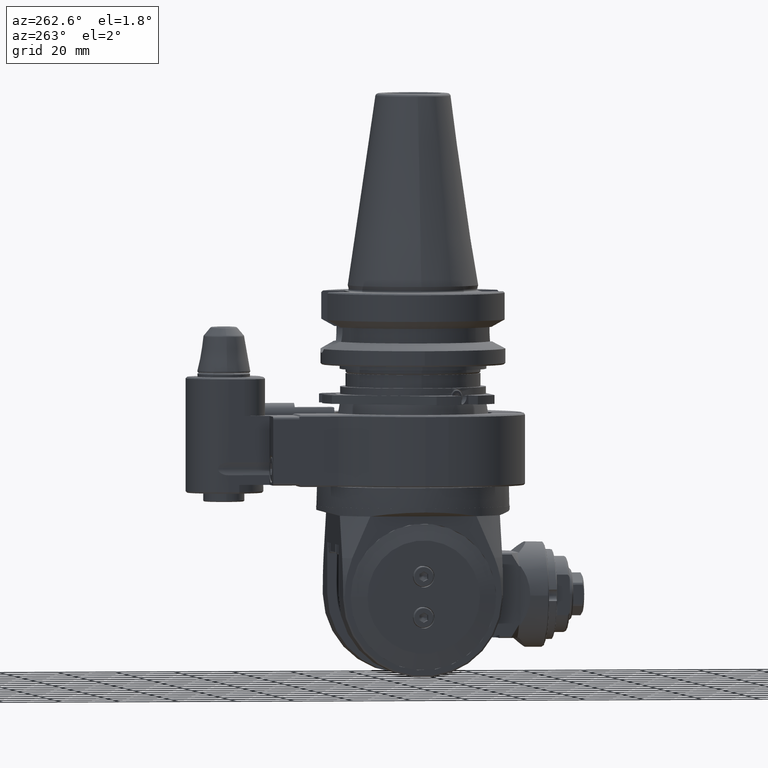
[diagram: clean part render]
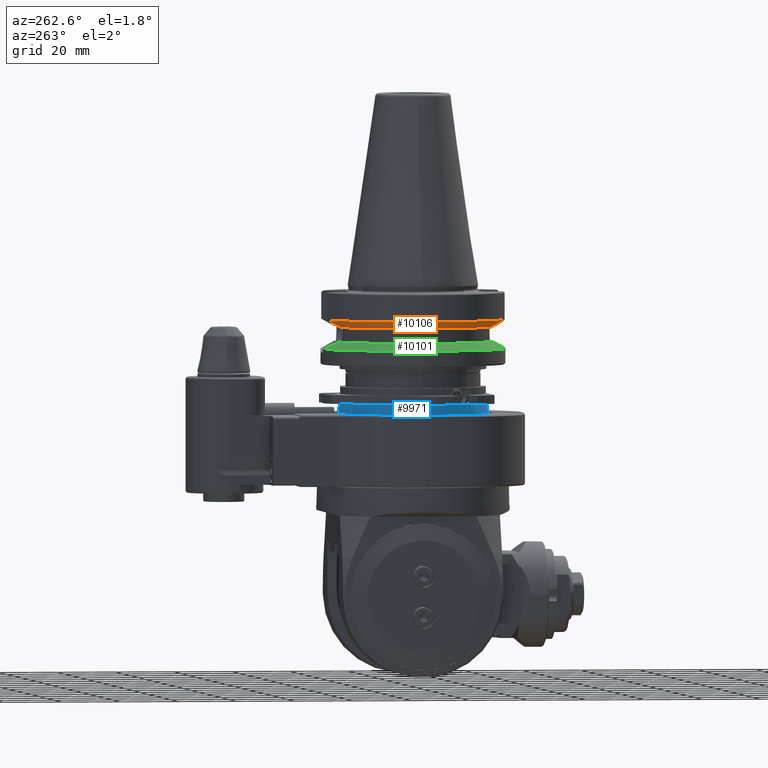
[diagram: same view with three faces highlighted in distinct colors, each labeled with its STEP entity id]
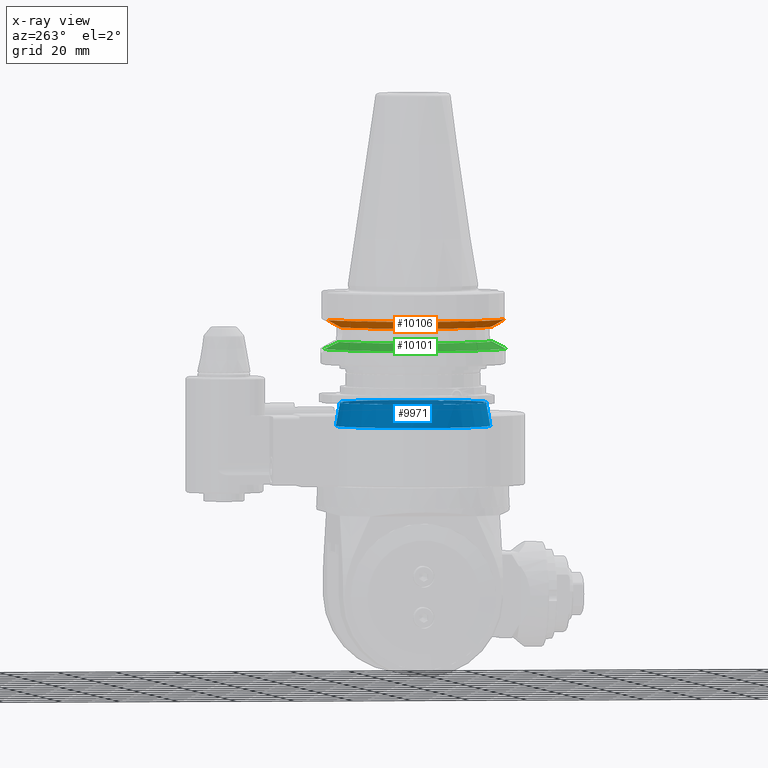
[diagram: x-ray of the same camera — body ghosted, the three highlighted faces saturated]
A machine part, auxiliary view with three faces highlighted in distinct colors.
The next image is the same camera in x-ray (body ghosted, the three faces saturated) — at least one of them is partly hidden behind the body in this view.
Their STEP definitions:

[orange] entity #10106 — the highlighted conical surface has half-angle 60 deg.
#99=(
BOUNDED_CURVE()
B_SPLINE_CURVE(2,(#15861,#15862,#15863),.UNSPECIFIED.,.F.,.F.)
B_SPLINE_CURVE_WITH_KNOTS((3,3),(-2.52625185842891,-1.9016605311531),
 .UNSPECIFIED.)
CURVE()
GEOMETRIC_REPRESENTATION_ITEM()
RATIONAL_B_SPLINE_CURVE((1.02064611976595,1.03030670257301,1.03392826272012))
REPRESENTATION_ITEM('')
);
#100=(
BOUNDED_CURVE()
B_SPLINE_CURVE(2,(#15885,#15886,#15887),.UNSPECIFIED.,.F.,.F.)
B_SPLINE_CURVE_WITH_KNOTS((3,3),(1.90166053726005,2.5262518499692),
 .UNSPECIFIED.)
CURVE()
GEOMETRIC_REPRESENTATION_ITEM()
RATIONAL_B_SPLINE_CURVE((1.03392826264895,1.0303067025273,1.02064612002745))
REPRESENTATION_ITEM('')
);
#316=CONICAL_SURFACE('',#10873,29.33481350322,1.0471975511966);
#2416=FACE_OUTER_BOUND('',#3035,.T.);
#3035=EDGE_LOOP('',(#7370,#7371,#7372,#7373));
#3648=CIRCLE('',#10874,27.16962701892);
#3649=CIRCLE('',#10875,31.5);
#4295=VERTEX_POINT('',#15859);
#4296=VERTEX_POINT('',#15860);
#4300=VERTEX_POINT('',#15882);
#4301=VERTEX_POINT('',#15884);
#5438=EDGE_CURVE('',#4295,#4296,#99,.T.);
#5444=EDGE_CURVE('',#4300,#4295,#3648,.T.);
#5445=EDGE_CURVE('',#4301,#4300,#100,.T.);
#5446=EDGE_CURVE('',#4301,#4296,#3649,.T.);
#7370=ORIENTED_EDGE('',*,*,#5438,.F.);
#7371=ORIENTED_EDGE('',*,*,#5444,.F.);
#7372=ORIENTED_EDGE('',*,*,#5445,.F.);
#7373=ORIENTED_EDGE('',*,*,#5446,.T.);
#10106=ADVANCED_FACE('',(#2416),#316,.T.);
#10873=AXIS2_PLACEMENT_3D('',#15881,#12497,#12498);
#10874=AXIS2_PLACEMENT_3D('',#15883,#12499,#12500);
#10875=AXIS2_PLACEMENT_3D('',#15888,#12501,#12502);
#12497=DIRECTION('center_axis',(0.,0.,1.));
#12498=DIRECTION('ref_axis',(-1.,1.400901672444E-9,0.));
#12499=DIRECTION('center_axis',(0.,0.,-1.));
#12500=DIRECTION('ref_axis',(-0.296286733371313,-0.955099037601942,0.));
#12501=DIRECTION('center_axis',(0.,0.,-1.));
#12502=DIRECTION('ref_axis',(-1.,1.400901549979E-9,0.));
#15859=CARTESIAN_POINT('',(-8.0499999458592,25.949684617418,53.8999999065049));
#15860=CARTESIAN_POINT('',(-8.049999957337,30.45402273406,56.40014200632));
#15861=CARTESIAN_POINT('Ctrl Pts',(-8.04999996364742,25.9496845832241,53.8999999685148));
#15862=CARTESIAN_POINT('Ctrl Pts',(-8.04999996072523,28.0356222925402,55.0502416880072));
#15863=CARTESIAN_POINT('Ctrl Pts',(-8.04999995733728,30.4540227339352,56.40014200625));
#15881=CARTESIAN_POINT('Origin',(0.,0.,55.15007099956));
#15882=CARTESIAN_POINT('',(-8.050000036353,-25.94968461778,53.9));
#15883=CARTESIAN_POINT('Origin',(0.,0.,53.9));
#15884=CARTESIAN_POINT('',(-8.05000007270157,-30.454022656574,56.4001419937208));
#15885=CARTESIAN_POINT('Ctrl Pts',(-8.05000004266271,-30.4540226642613,
56.4001419799488));
#15886=CARTESIAN_POINT('Ctrl Pts',(-8.05000003927477,-28.0356222826582,
55.0502416952171));
#15887=CARTESIAN_POINT('Ctrl Pts',(-8.05000003635258,-25.9496846177145,
53.8999999999707));
#15888=CARTESIAN_POINT('Origin',(0.,0.,56.40014200632));

[blue] entity #9971 — the highlighted conical surface has half-angle 10 deg.
#291=CONICAL_SURFACE('',#10658,25.70530792283,0.174532925199433);
#383=B_SPLINE_CURVE_WITH_KNOTS('',3,(#14841,#14842,#14843,#14844,#14845,
#14846,#14847,#14848,#14849,#14850),.UNSPECIFIED.,.F.,.F.,(4,2,2,2,4),(0.311494920446572,
0.319461834048364,0.425205977115321,0.530950120182278,0.538917033784317),
 .UNSPECIFIED.);
#384=B_SPLINE_CURVE_WITH_KNOTS('',3,(#14917,#14918,#14919,#14920,#14921,
#14922),.UNSPECIFIED.,.F.,.F.,(4,2,4),(0.311494920446681,0.319461834048362,
0.425205977115319),.UNSPECIFIED.);
#385=B_SPLINE_CURVE_WITH_KNOTS('',3,(#14929,#14930,#14931,#14932,#14933,
#14934),.UNSPECIFIED.,.F.,.F.,(4,2,4),(0.425205977115319,0.530950120182276,
0.538917033784068),.UNSPECIFIED.);
#495=LINE('',#14961,#1331);
#1331=VECTOR('',#11861,25.70530792283);
#2281=FACE_OUTER_BOUND('',#2885,.T.);
#2885=EDGE_LOOP('',(#6688,#6689,#6690,#6691,#6692,#6693,#6694,#6695,#6696,
#6697,#6698));
#3559=CIRCLE('',#10633,25.);
#3560=CIRCLE('',#10634,25.);
#3568=CIRCLE('',#10657,25.);
#3569=CIRCLE('',#10659,26.41061584567);
#3570=CIRCLE('',#10660,26.41061584567);
#3571=CIRCLE('',#10661,26.41061584567);
#4051=VERTEX_POINT('',#14838);
#4052=VERTEX_POINT('',#14840);
#4063=VERTEX_POINT('',#14874);
#4064=VERTEX_POINT('',#14876);
#4070=VERTEX_POINT('',#14915);
#4073=VERTEX_POINT('',#14927);
#4081=VERTEX_POINT('',#14955);
#4082=VERTEX_POINT('',#14956);
#4083=VERTEX_POINT('',#14958);
#5057=EDGE_CURVE('',#4052,#4051,#383,.T.);
#5070=EDGE_CURVE('',#4063,#4064,#3559,.T.);
#5071=EDGE_CURVE('',#4064,#4051,#3560,.T.);
#5091=EDGE_CURVE('',#4063,#4070,#384,.T.);
#5095=EDGE_CURVE('',#4070,#4073,#385,.T.);
#5105=EDGE_CURVE('',#4052,#4073,#3568,.T.);
#5106=EDGE_CURVE('',#4081,#4082,#3569,.T.);
#5107=EDGE_CURVE('',#4083,#4081,#3570,.T.);
#5108=EDGE_CURVE('',#4082,#4083,#3571,.T.);
#5109=EDGE_CURVE('',#4082,#4064,#495,.T.);
#6688=ORIENTED_EDGE('',*,*,#5106,.F.);
#6689=ORIENTED_EDGE('',*,*,#5107,.F.);
#6690=ORIENTED_EDGE('',*,*,#5108,.F.);
#6691=ORIENTED_EDGE('',*,*,#5109,.T.);
#6692=ORIENTED_EDGE('',*,*,#5070,.F.);
#6693=ORIENTED_EDGE('',*,*,#5091,.T.);
#6694=ORIENTED_EDGE('',*,*,#5095,.T.);
#6695=ORIENTED_EDGE('',*,*,#5105,.F.);
#6696=ORIENTED_EDGE('',*,*,#5057,.T.);
#6697=ORIENTED_EDGE('',*,*,#5071,.F.);
#6698=ORIENTED_EDGE('',*,*,#5109,.F.);
#9971=ADVANCED_FACE('',(#2281),#291,.T.);
#10633=AXIS2_PLACEMENT_3D('',#14877,#11779,#11780);
#10634=AXIS2_PLACEMENT_3D('',#14878,#11781,#11782);
#10657=AXIS2_PLACEMENT_3D('',#14953,#11851,#11852);
#10658=AXIS2_PLACEMENT_3D('',#14954,#11853,#11854);
#10659=AXIS2_PLACEMENT_3D('',#14957,#11855,#11856);
#10660=AXIS2_PLACEMENT_3D('',#14959,#11857,#11858);
#10661=AXIS2_PLACEMENT_3D('',#14960,#11859,#11860);
#11779=DIRECTION('center_axis',(0.,0.,1.));
#11780=DIRECTION('ref_axis',(0.,1.,0.));
#11781=DIRECTION('center_axis',(0.,0.,1.));
#11782=DIRECTION('ref_axis',(0.,1.,0.));
#11851=DIRECTION('center_axis',(0.,0.,1.));
#11852=DIRECTION('ref_axis',(0.,-1.,0.));
#11853=DIRECTION('center_axis',(0.,0.,-1.));
#11854=DIRECTION('ref_axis',(0.,-1.,0.));
#11855=DIRECTION('center_axis',(0.,0.,-1.));
#11856=DIRECTION('ref_axis',(-0.0567953435378122,-0.998385841722739,0.));
#11857=DIRECTION('center_axis',(0.,0.,-1.));
#11858=DIRECTION('ref_axis',(0.0567953435378222,-0.998385841722738,0.));
#11859=DIRECTION('center_axis',(0.,0.,-1.));
#11860=DIRECTION('ref_axis',(-0.0567953435378122,-0.998385841722739,0.));
#11861=DIRECTION('',(-2.12657684957577E-17,-0.17364817766693,0.984807753012208));
#14838=CARTESIAN_POINT('',(-22.20071194217,-11.49471136048,28.));
#14840=CARTESIAN_POINT('',(-21.05506801843,-13.47902484378,28.));
#14841=CARTESIAN_POINT('Ctrl Pts',(-21.0550680184276,-13.4790248437784,
27.9999999999997));
#14842=CARTESIAN_POINT('Ctrl Pts',(-21.0705610404775,-13.4586315822884,
27.9883567779367));
#14843=CARTESIAN_POINT('Ctrl Pts',(-21.0860654153688,-13.4380234538341,
27.9770944773002));
#14844=CARTESIAN_POINT('Ctrl Pts',(-21.3073330050604,-13.1410243938338,
27.8219214187938));
#14845=CARTESIAN_POINT('Ctrl Pts',(-21.5125707673284,-12.8272979199127,
27.75));
#14846=CARTESIAN_POINT('Ctrl Pts',(-21.8650512442183,-12.2167838252634,
27.75));
#14847=CARTESIAN_POINT('Ctrl Pts',(-22.0341274593397,-11.8821794723629,
27.8219214187938));
#14848=CARTESIAN_POINT('Ctrl Pts',(-22.1807023953547,-11.5420565886549,
27.9770944773005));
#14849=CARTESIAN_POINT('Ctrl Pts',(-22.1907973706752,-11.5183253419014,
27.9883567779374));
#14850=CARTESIAN_POINT('Ctrl Pts',(-22.2007119421669,-11.4947113604791,
28.0000000000007));
#14874=CARTESIAN_POINT('',(22.20071194217,-11.49471136048,28.));
#14876=CARTESIAN_POINT('',(3.06161699786789E-15,24.999999999996,28.0000000000007));
#14877=CARTESIAN_POINT('Origin',(0.,0.,28.));
#14878=CARTESIAN_POINT('Origin',(0.,0.,28.));
#14915=CARTESIAN_POINT('',(21.6888110057734,-12.522040872588,27.75));
#14917=CARTESIAN_POINT('Ctrl Pts',(22.2007119421656,-11.4947113604823,27.9999999999992));
#14918=CARTESIAN_POINT('Ctrl Pts',(22.1907973706743,-11.5183253419035,27.9883567779364));
#14919=CARTESIAN_POINT('Ctrl Pts',(22.1807023953543,-11.542056588656,27.9770944773));
#14920=CARTESIAN_POINT('Ctrl Pts',(22.0341274593397,-11.8821794723629,27.8219214187938));
#14921=CARTESIAN_POINT('Ctrl Pts',(21.8650512442183,-12.2167838252634,27.75));
#14922=CARTESIAN_POINT('Ctrl Pts',(21.6888110057734,-12.522040872588,27.75));
#14927=CARTESIAN_POINT('',(21.05506801843,-13.47902484378,28.));
#14929=CARTESIAN_POINT('Ctrl Pts',(21.6888110057734,-12.522040872588,27.75));
#14930=CARTESIAN_POINT('Ctrl Pts',(21.5125707673284,-12.8272979199127,27.75));
#14931=CARTESIAN_POINT('Ctrl Pts',(21.3073330050604,-13.1410243938338,27.8219214187938));
#14932=CARTESIAN_POINT('Ctrl Pts',(21.0860654153689,-13.4380234538341,27.9770944773002));
#14933=CARTESIAN_POINT('Ctrl Pts',(21.0705610404775,-13.4586315822884,27.9883567779367));
#14934=CARTESIAN_POINT('Ctrl Pts',(21.0550680184276,-13.4790248437784,27.9999999999997));
#14953=CARTESIAN_POINT('Origin',(0.,0.,28.));
#14954=CARTESIAN_POINT('Origin',(0.,0.,24.));
#14955=CARTESIAN_POINT('',(-1.5,-26.36798493149,20.));
#14956=CARTESIAN_POINT('',(3.23436761589028E-15,26.410615845664,19.9999999999989));
#14957=CARTESIAN_POINT('Origin',(0.,0.,20.));
#14958=CARTESIAN_POINT('',(1.5,-26.36798493149,20.));
#14959=CARTESIAN_POINT('Origin',(0.,0.,20.));
#14960=CARTESIAN_POINT('Origin',(0.,0.,20.));
#14961=CARTESIAN_POINT('',(3.14799230687909E-15,25.70530792283,24.));

[green] entity #10101 — the highlighted conical surface has half-angle 60 deg.
#315=CONICAL_SURFACE('',#10864,29.33481350946,1.0471975511966);
#394=B_SPLINE_CURVE_WITH_KNOTS('',3,(#15792,#15793,#15794,#15795,#15796,
#15797),.UNSPECIFIED.,.F.,.F.,(4,2,4),(-5.58418756700394,-5.34856010745547,
-5.02156291190381),.UNSPECIFIED.);
#397=B_SPLINE_CURVE_WITH_KNOTS('',3,(#15821,#15822,#15823,#15824,#15825,
#15826),.UNSPECIFIED.,.F.,.F.,(4,2,4),(5.02156291190423,5.34856010745548,
5.58418757250863),.UNSPECIFIED.);
#2411=FACE_OUTER_BOUND('',#3030,.T.);
#3030=EDGE_LOOP('',(#7337,#7338,#7339,#7340,#7341));
#3638=CIRCLE('',#10855,31.5);
#3640=CIRCLE('',#10857,31.5);
#3644=CIRCLE('',#10865,27.16962701892);
#4272=VERTEX_POINT('',#15739);
#4273=VERTEX_POINT('',#15741);
#4276=VERTEX_POINT('',#15756);
#4281=VERTEX_POINT('',#15791);
#4287=VERTEX_POINT('',#15820);
#5408=EDGE_CURVE('',#4273,#4272,#3638,.T.);
#5412=EDGE_CURVE('',#4272,#4276,#3640,.T.);
#5419=EDGE_CURVE('',#4281,#4276,#394,.T.);
#5426=EDGE_CURVE('',#4273,#4287,#397,.T.);
#5427=EDGE_CURVE('',#4287,#4281,#3644,.T.);
#7337=ORIENTED_EDGE('',*,*,#5426,.F.);
#7338=ORIENTED_EDGE('',*,*,#5408,.T.);
#7339=ORIENTED_EDGE('',*,*,#5412,.T.);
#7340=ORIENTED_EDGE('',*,*,#5419,.F.);
#7341=ORIENTED_EDGE('',*,*,#5427,.F.);
#10101=ADVANCED_FACE('',(#2411),#315,.T.);
#10855=AXIS2_PLACEMENT_3D('',#15742,#12447,#12448);
#10857=AXIS2_PLACEMENT_3D('',#15767,#12451,#12452);
#10864=AXIS2_PLACEMENT_3D('',#15819,#12470,#12471);
#10865=AXIS2_PLACEMENT_3D('',#15827,#12472,#12473);
#12447=DIRECTION('center_axis',(0.,0.,1.));
#12448=DIRECTION('ref_axis',(-0.144009849959993,0.989576254320252,0.));
#12451=DIRECTION('center_axis',(0.,0.,1.));
#12452=DIRECTION('ref_axis',(-0.144009849959993,0.989576254320252,0.));
#12470=DIRECTION('center_axis',(0.,0.,-1.));
#12471=DIRECTION('ref_axis',(-1.,1.40081919431565E-9,0.));
#12472=DIRECTION('center_axis',(0.,0.,1.));
#12473=DIRECTION('ref_axis',(-0.253880036420915,0.967235714346257,0.));
#15739=CARTESIAN_POINT('',(-31.5,4.41284065396234E-8,46.399857993682));
#15741=CARTESIAN_POINT('',(-4.536310273739,31.17165201109,46.39985799368));
#15742=CARTESIAN_POINT('Origin',(0.,0.,46.39985799368));
#15756=CARTESIAN_POINT('',(-4.536310361068,-31.17165199838,46.39985799368));
#15767=CARTESIAN_POINT('Origin',(0.,0.,46.39985799368));
#15791=CARTESIAN_POINT('',(-6.897825781207,-26.27943362859,48.9));
#15792=CARTESIAN_POINT('Ctrl Pts',(-6.89782578120617,-26.2794336285889,
48.8999999999984));
#15793=CARTESIAN_POINT('Ctrl Pts',(-6.67616498748301,-26.9973680586649,
48.5315716779737));
#15794=CARTESIAN_POINT('Ctrl Pts',(-6.41303298588266,-27.7207116505418,
48.1611845905577));
#15795=CARTESIAN_POINT('Ctrl Pts',(-5.67456800204397,-29.4006887546131,
47.3023809249179));
#15796=CARTESIAN_POINT('Ctrl Pts',(-5.15792470531729,-30.3390190387318,
46.8238843627197));
#15797=CARTESIAN_POINT('Ctrl Pts',(-4.5363103610707,-31.1716519983817,46.3998579936794));
#15819=CARTESIAN_POINT('Origin',(0.,0.,47.64992899684));
#15820=CARTESIAN_POINT('',(-6.89782578674775,26.2794336130884,48.9000000177198));
#15821=CARTESIAN_POINT('Ctrl Pts',(-4.53631027373621,31.1716520110884,46.399857993681));
#15822=CARTESIAN_POINT('Ctrl Pts',(-5.15792462031462,30.3390190531809,46.8238843627209));
#15823=CARTESIAN_POINT('Ctrl Pts',(-5.67456791966957,29.4006887705109,47.3023809249186));
#15824=CARTESIAN_POINT('Ctrl Pts',(-6.41303291543978,27.720711652073,48.1611845989602));
#15825=CARTESIAN_POINT('Ctrl Pts',(-6.67616492413268,26.9973680435717,48.5315716952807));
#15826=CARTESIAN_POINT('Ctrl Pts',(-6.89782572311175,26.2794335975979,48.9000000258202));
#15827=CARTESIAN_POINT('Origin',(0.,0.,48.9));